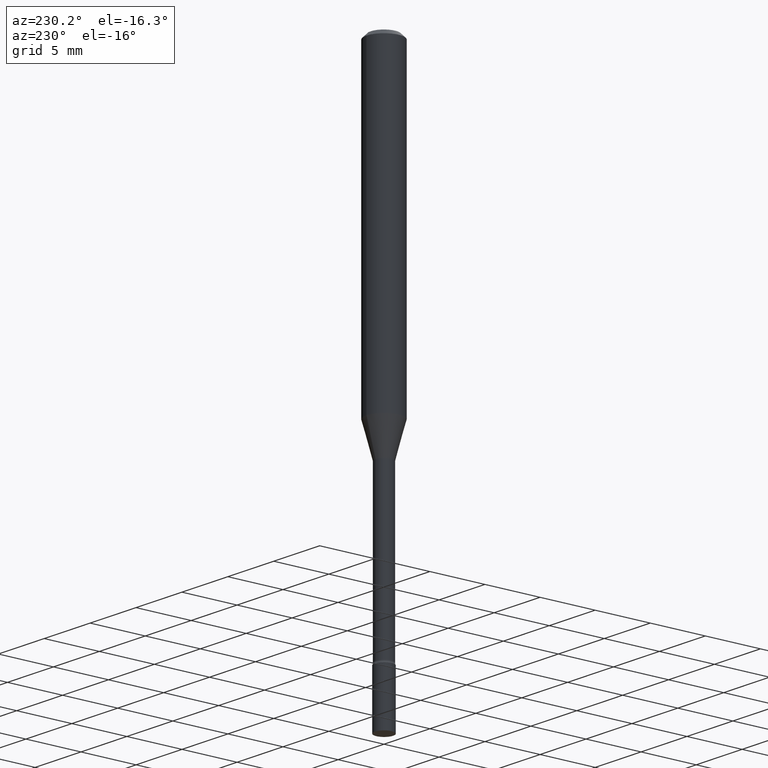
[diagram: clean part render]
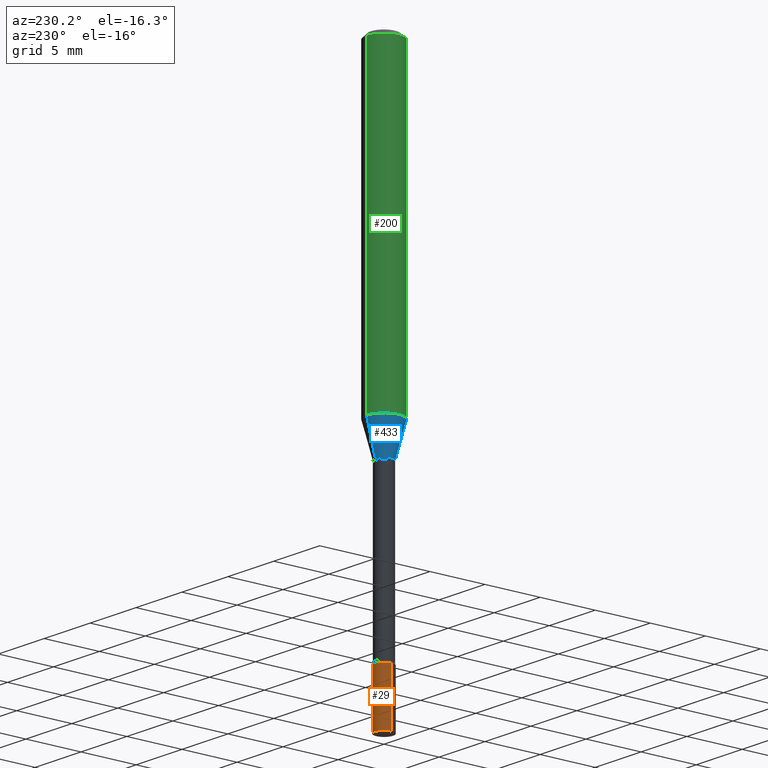
[diagram: same view with three faces highlighted in distinct colors, each labeled with its STEP entity id]
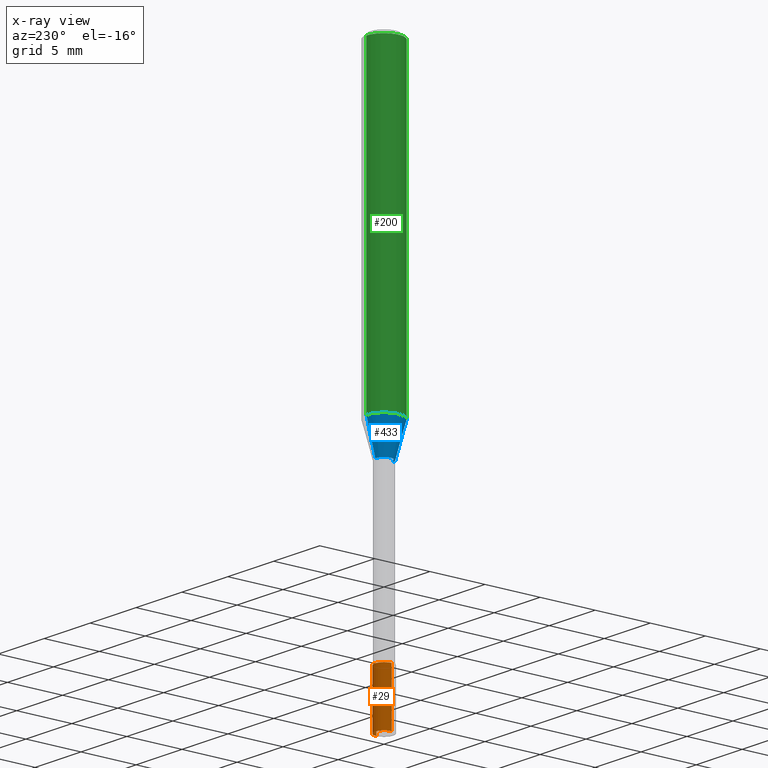
[diagram: x-ray of the same camera — body ghosted, the three highlighted faces saturated]
A machine part, auxiliary view with three faces highlighted in distinct colors.
The next image is the same camera in x-ray (body ghosted, the three faces saturated) — at least one of them is partly hidden behind the body in this view.
Their STEP definitions:

[orange] entity #29 — the highlighted cylindrical surface (edge-blend (fillet) strip) has radius 0.8255 mm, axis along (-0, 0, 1).
#5 = CARTESIAN_POINT ( 'NONE',  ( 0.000000000000000000, 0.000000000000000000, 0.000000000000000000 ) ) ;
#28 = EDGE_CURVE ( 'NONE', #37, #490, #328, .T. ) ;
#29 = ADVANCED_FACE ( 'NONE', ( #483 ), #520, .T. ) ;
#37 = VERTEX_POINT ( 'NONE', #69 ) ;
#39 = LINE ( 'NONE', #326, #434 ) ;
#69 = CARTESIAN_POINT ( 'NONE',  ( 0.03250000000000000111, -6.529070103636681305E-15, -1.804999999999999938 ) ) ;
#95 = CARTESIAN_POINT ( 'NONE',  ( 0.03250000000000000111, -7.209908964711093729E-15, -2.000000000000000000 ) ) ;
#106 = CARTESIAN_POINT ( 'NONE',  ( -0.03250000000000000111, 2.309263891220325683E-16, -1.598653904332844407E-30 ) ) ;
#112 = DIRECTION ( 'NONE',  ( -2.445468806185136597E-29, 3.491481338843145583E-15, 1.000000000000000000 ) ) ;
#128 = EDGE_CURVE ( 'NONE', #380, #37, #39, .T. ) ;
#180 = AXIS2_PLACEMENT_3D ( 'NONE', #5, #112, #401 ) ;
#190 = DIRECTION ( 'NONE',  ( 1.000000000000000000, -6.982962677686258033E-15, 0.000000000000000000 ) ) ;
#222 = DIRECTION ( 'NONE',  ( 1.000000000000000000, -6.982962677686258033E-15, 0.000000000000000000 ) ) ;
#229 = AXIS2_PLACEMENT_3D ( 'NONE', #257, #474, #222 ) ;
#235 = LINE ( 'NONE', #106, #303 ) ;
#241 = ORIENTED_EDGE ( 'NONE', *, *, #128, .F. ) ;
#247 = EDGE_CURVE ( 'NONE', #380, #502, #350, .T. ) ;
#253 = EDGE_LOOP ( 'NONE', ( #471, #458, #293, #241 ) ) ;
#257 = CARTESIAN_POINT ( 'NONE',  ( 4.890937612370273194E-29, -6.982962677686291165E-15, -2.000000000000000000 ) ) ;
#274 = CARTESIAN_POINT ( 'NONE',  ( -0.03250000000000000111, -6.411616858027052188E-15, -2.000000000000000000 ) ) ;
#293 = ORIENTED_EDGE ( 'NONE', *, *, #28, .F. ) ;
#303 = VECTOR ( 'NONE', #519, 39.37007874015748143 ) ;
#312 = DIRECTION ( 'NONE',  ( -2.445468806185136597E-29, 3.491481338843145583E-15, 1.000000000000000000 ) ) ;
#326 = CARTESIAN_POINT ( 'NONE',  ( 0.03250000000000000111, -2.269462870248036484E-16, 1.584757452133678993E-30 ) ) ;
#328 = CIRCLE ( 'NONE', #349, 0.03250000000000000111 ) ;
#349 = AXIS2_PLACEMENT_3D ( 'NONE', #512, #312, #190 ) ;
#350 = CIRCLE ( 'NONE', #229, 0.03250000000000000111 ) ;
#380 = VERTEX_POINT ( 'NONE', #95 ) ;
#401 = DIRECTION ( 'NONE',  ( 1.000000000000000000, -6.982962677686265922E-15, 4.876176775795935232E-29 ) ) ;
#411 = EDGE_CURVE ( 'NONE', #502, #490, #235, .T. ) ;
#434 = VECTOR ( 'NONE', #493, 39.37007874015748143 ) ;
#437 = CARTESIAN_POINT ( 'NONE',  ( -0.03250000000000000111, -6.411616858027052188E-15, -1.804999999999999938 ) ) ;
#458 = ORIENTED_EDGE ( 'NONE', *, *, #411, .T. ) ;
#471 = ORIENTED_EDGE ( 'NONE', *, *, #247, .T. ) ;
#474 = DIRECTION ( 'NONE',  ( -2.445468806185136597E-29, 3.491481338843145583E-15, 1.000000000000000000 ) ) ;
#483 = FACE_OUTER_BOUND ( 'NONE', #253, .T. ) ;
#490 = VERTEX_POINT ( 'NONE', #437 ) ;
#493 = DIRECTION ( 'NONE',  ( -2.445468806185136877E-29, 3.491481338843145188E-15, 1.000000000000000000 ) ) ;
#502 = VERTEX_POINT ( 'NONE', #274 ) ;
#512 = CARTESIAN_POINT ( 'NONE',  ( 4.414071195164171423E-29, -6.302123816611877952E-15, -1.804999999999999938 ) ) ;
#519 = DIRECTION ( 'NONE',  ( -2.445468806185136877E-29, 3.491481338843145188E-15, 1.000000000000000000 ) ) ;
#520 = CYLINDRICAL_SURFACE ( 'NONE', #180, 0.03250000000000000111 ) ;

[blue] entity #433 — the highlighted conical surface has half-angle 15 deg.
#3 = EDGE_CURVE ( 'NONE', #424, #503, #83, .T. ) ;
#18 = EDGE_CURVE ( 'NONE', #424, #234, #385, .T. ) ;
#26 = CARTESIAN_POINT ( 'NONE',  ( 2.207024792658399071E-16, 0.03106111260565972559, -1.218092501787273241 ) ) ;
#31 = AXIS2_PLACEMENT_3D ( 'NONE', #149, #317, #77 ) ;
#70 = AXIS2_PLACEMENT_3D ( 'NONE', #351, #323, #489 ) ;
#73 = EDGE_CURVE ( 'NONE', #503, #438, #233, .T. ) ;
#77 = DIRECTION ( 'NONE',  ( -6.982962677686265922E-15, -1.000000000000000000, 4.397537249142376224E-15 ) ) ;
#83 = CIRCLE ( 'NONE', #310, 0.03106111260566397914 ) ;
#96 = CARTESIAN_POINT ( 'NONE',  ( 2.978764867471240520E-29, -4.253007884720253007E-15, -1.218092501787273019 ) ) ;
#100 = DIRECTION ( 'NONE',  ( -2.445434039779886837E-29, 3.491531126314244194E-15, 1.000000000000000000 ) ) ;
#116 = EDGE_CURVE ( 'NONE', #234, #438, #150, .T. ) ;
#147 = ORIENTED_EDGE ( 'NONE', *, *, #3, .T. ) ;
#149 = CARTESIAN_POINT ( 'NONE',  ( 2.978764867471240520E-29, -4.253007884720253007E-15, -1.218092501787273019 ) ) ;
#150 = CIRCLE ( 'NONE', #70, 0.06250000000000000000 ) ;
#157 = FACE_OUTER_BOUND ( 'NONE', #267, .T. ) ;
#186 = CARTESIAN_POINT ( 'NONE',  ( -4.364351673553647002E-16, -0.06250000000000384415, -1.100760976698174298 ) ) ;
#233 = LINE ( 'NONE', #439, #366 ) ;
#234 = VERTEX_POINT ( 'NONE', #476 ) ;
#267 = EDGE_LOOP ( 'NONE', ( #306, #147, #355, #464 ) ) ;
#306 = ORIENTED_EDGE ( 'NONE', *, *, #18, .F. ) ;
#310 = AXIS2_PLACEMENT_3D ( 'NONE', #96, #100, #413 ) ;
#317 = DIRECTION ( 'NONE',  ( -2.445434039779886837E-29, 3.491531126314244194E-15, 1.000000000000000000 ) ) ;
#323 = DIRECTION ( 'NONE',  ( -2.445434039779886837E-29, 3.491531126314244194E-15, 1.000000000000000000 ) ) ;
#332 = VECTOR ( 'NONE', #347, 39.37007874015748854 ) ;
#347 = DIRECTION ( 'NONE',  ( 1.839019923739597160E-15, 0.2588190451025245142, 0.9659258262890670910 ) ) ;
#351 = CARTESIAN_POINT ( 'NONE',  ( 2.691838362079070792E-29, -3.843341212773745017E-15, -1.100760976698174520 ) ) ;
#355 = ORIENTED_EDGE ( 'NONE', *, *, #73, .T. ) ;
#356 = CARTESIAN_POINT ( 'NONE',  ( 3.323958445579647462E-16, 0.03106111260565972559, -1.218092501787273241 ) ) ;
#366 = VECTOR ( 'NONE', #397, 39.37007874015748143 ) ;
#385 = LINE ( 'NONE', #26, #332 ) ;
#397 = DIRECTION ( 'NONE',  ( -1.807323732225327378E-15, -0.2588190451025177974, 0.9659258262890690894 ) ) ;
#413 = DIRECTION ( 'NONE',  ( -6.982962677686265922E-15, -1.000000000000000000, 4.397537249142376224E-15 ) ) ;
#424 = VERTEX_POINT ( 'NONE', #356 ) ;
#433 = ADVANCED_FACE ( 'NONE', ( #157 ), #495, .T. ) ;
#438 = VERTEX_POINT ( 'NONE', #186 ) ;
#439 = CARTESIAN_POINT ( 'NONE',  ( -2.168985900527321632E-16, -0.03106111260566822921, -1.218092501787273019 ) ) ;
#464 = ORIENTED_EDGE ( 'NONE', *, *, #116, .F. ) ;
#476 = CARTESIAN_POINT ( 'NONE',  ( 4.440892098500895360E-16, 0.06249999999999617667, -1.100760976698174742 ) ) ;
#489 = DIRECTION ( 'NONE',  ( -6.982962677686265922E-15, -1.000000000000000000, 4.370956789862821150E-15 ) ) ;
#491 = CARTESIAN_POINT ( 'NONE',  ( -2.168985900527321632E-16, -0.03106111260566822921, -1.218092501787273019 ) ) ;
#495 = CONICAL_SURFACE ( 'NONE', #31, 0.03106111260566397914, 0.2617993877991498519 ) ;
#503 = VERTEX_POINT ( 'NONE', #491 ) ;

[green] entity #200 — the highlighted cylindrical surface (edge-blend (fillet) strip) has radius 1.5875 mm, axis along (-0, 0, 1).
#9 = EDGE_CURVE ( 'NONE', #234, #75, #428, .T. ) ;
#30 = VECTOR ( 'NONE', #103, 39.37007874015748143 ) ;
#63 = ORIENTED_EDGE ( 'NONE', *, *, #223, .T. ) ;
#70 = AXIS2_PLACEMENT_3D ( 'NONE', #351, #323, #489 ) ;
#75 = VERTEX_POINT ( 'NONE', #155 ) ;
#87 = DIRECTION ( 'NONE',  ( -6.982962677686265922E-15, -1.000000000000000000, 3.483106191921935554E-15 ) ) ;
#103 = DIRECTION ( 'NONE',  ( -2.445434039779886837E-29, 3.491531126314244194E-15, 1.000000000000000000 ) ) ;
#109 = LINE ( 'NONE', #392, #254 ) ;
#116 = EDGE_CURVE ( 'NONE', #234, #438, #150, .T. ) ;
#122 = DIRECTION ( 'NONE',  ( -2.445434039779886837E-29, 3.491531126314244194E-15, 1.000000000000000000 ) ) ;
#150 = CIRCLE ( 'NONE', #70, 0.06250000000000000000 ) ;
#155 = CARTESIAN_POINT ( 'NONE',  ( 4.440892098500897333E-16, 0.06249999999999995837, -0.01500000000000024751 ) ) ;
#186 = CARTESIAN_POINT ( 'NONE',  ( -4.364351673553647002E-16, -0.06250000000000384415, -1.100760976698174298 ) ) ;
#200 = ADVANCED_FACE ( 'NONE', ( #321 ), #403, .T. ) ;
#223 = EDGE_CURVE ( 'NONE', #438, #461, #109, .T. ) ;
#234 = VERTEX_POINT ( 'NONE', #476 ) ;
#237 = DIRECTION ( 'NONE',  ( -6.982962677686265922E-15, -1.000000000000000000, 3.491531126314243799E-15 ) ) ;
#254 = VECTOR ( 'NONE', #122, 39.37007874015748143 ) ;
#280 = DIRECTION ( 'NONE',  ( -2.445434039779886837E-29, 3.491531126314244194E-15, 1.000000000000000000 ) ) ;
#286 = AXIS2_PLACEMENT_3D ( 'NONE', #488, #280, #237 ) ;
#297 = DIRECTION ( 'NONE',  ( -2.445434039779886837E-29, 3.491531126314244194E-15, 1.000000000000000000 ) ) ;
#299 = AXIS2_PLACEMENT_3D ( 'NONE', #346, #297, #87 ) ;
#314 = CARTESIAN_POINT ( 'NONE',  ( -4.364351673553912750E-16, -0.06250000000000005551, -0.01499999999999981209 ) ) ;
#321 = FACE_OUTER_BOUND ( 'NONE', #358, .T. ) ;
#322 = EDGE_CURVE ( 'NONE', #75, #461, #506, .T. ) ;
#323 = DIRECTION ( 'NONE',  ( -2.445434039779886837E-29, 3.491531126314244194E-15, 1.000000000000000000 ) ) ;
#330 = ORIENTED_EDGE ( 'NONE', *, *, #9, .F. ) ;
#338 = ORIENTED_EDGE ( 'NONE', *, *, #322, .F. ) ;
#346 = CARTESIAN_POINT ( 'NONE',  ( 3.668151059669837174E-31, -5.237296689471377261E-17, -0.01500000000000003067 ) ) ;
#351 = CARTESIAN_POINT ( 'NONE',  ( 2.691838362079070792E-29, -3.843341212773745017E-15, -1.100760976698174520 ) ) ;
#358 = EDGE_LOOP ( 'NONE', ( #330, #430, #63, #338 ) ) ;
#389 = CARTESIAN_POINT ( 'NONE',  ( 4.440892098500625669E-16, 0.06250000000000000000, -2.182206953946402375E-16 ) ) ;
#392 = CARTESIAN_POINT ( 'NONE',  ( -4.364351673553916201E-16, -0.06250000000000000000, 2.182206953946402375E-16 ) ) ;
#403 = CYLINDRICAL_SURFACE ( 'NONE', #286, 0.06250000000000000000 ) ;
#428 = LINE ( 'NONE', #389, #30 ) ;
#430 = ORIENTED_EDGE ( 'NONE', *, *, #116, .T. ) ;
#438 = VERTEX_POINT ( 'NONE', #186 ) ;
#461 = VERTEX_POINT ( 'NONE', #314 ) ;
#476 = CARTESIAN_POINT ( 'NONE',  ( 4.440892098500895360E-16, 0.06249999999999617667, -1.100760976698174742 ) ) ;
#488 = CARTESIAN_POINT ( 'NONE',  ( 0.000000000000000000, 0.000000000000000000, 0.000000000000000000 ) ) ;
#489 = DIRECTION ( 'NONE',  ( -6.982962677686265922E-15, -1.000000000000000000, 4.370956789862821150E-15 ) ) ;
#506 = CIRCLE ( 'NONE', #299, 0.06250000000000000000 ) ;